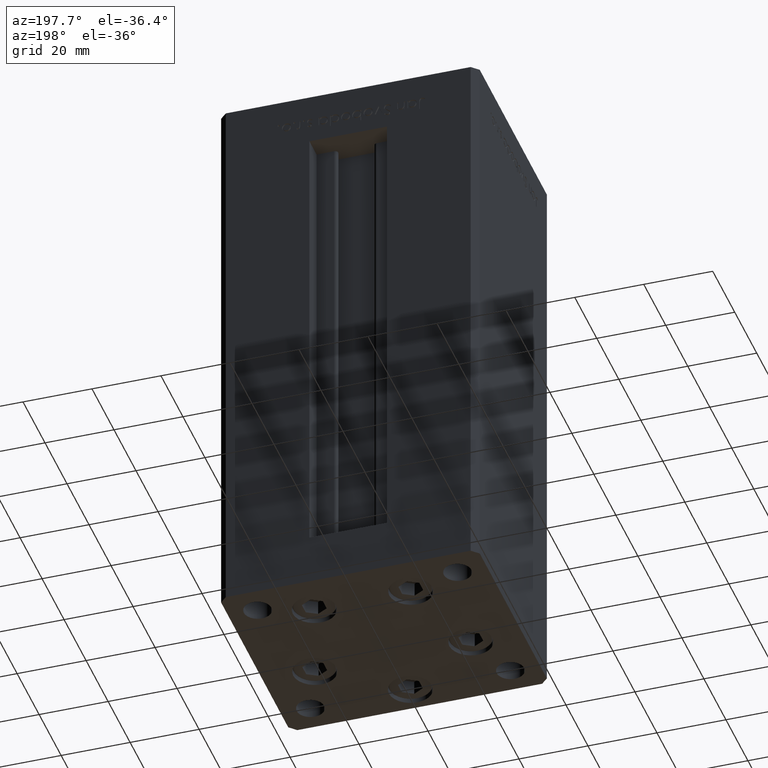
[diagram: clean part render]
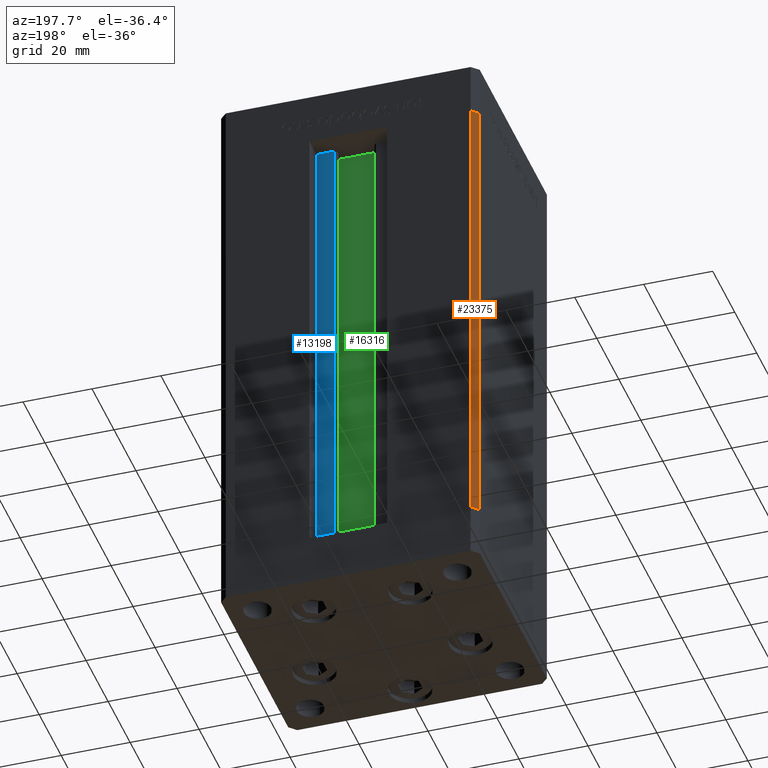
[diagram: same view with three faces highlighted in distinct colors, each labeled with its STEP entity id]
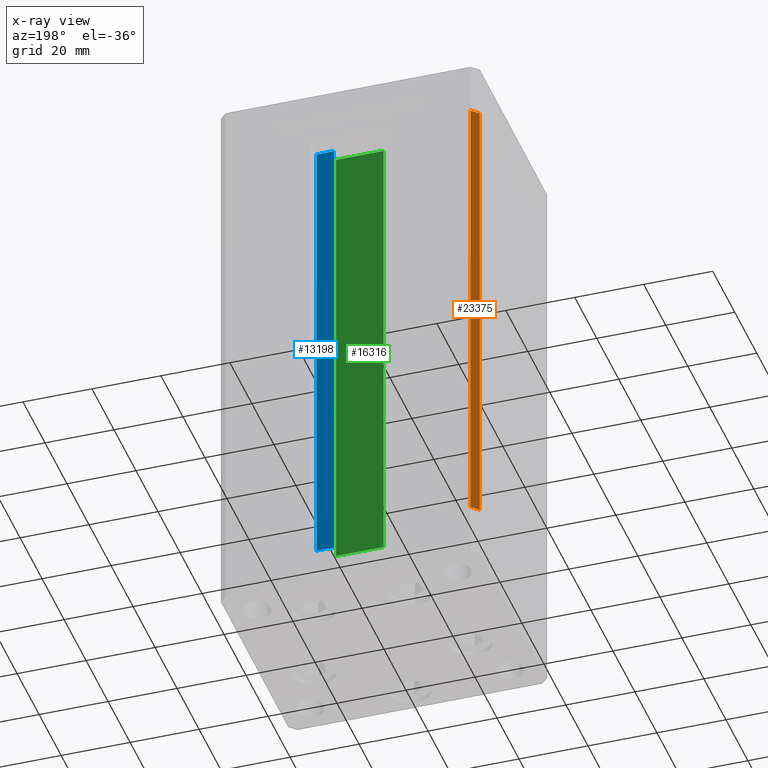
[diagram: x-ray of the same camera — body ghosted, the three highlighted faces saturated]
A machine part, auxiliary view with three faces highlighted in distinct colors.
The next image is the same camera in x-ray (body ghosted, the three faces saturated) — at least one of them is partly hidden behind the body in this view.
Their STEP definitions:

[orange] entity #23375 — the highlighted planar face has unit normal (0.7071, -0.7071, 0).
#1113 = DIRECTION ( 'NONE',  ( -0.000000000000000000, -0.000000000000000000, -1.000000000000000000 ) ) ;
#3358 = ORIENTED_EDGE ( 'NONE', *, *, #16853, .F. ) ;
#5956 = LINE ( 'NONE', #38162, #46233 ) ;
#6739 = VERTEX_POINT ( 'NONE', #15848 ) ;
#7260 = CARTESIAN_POINT ( 'NONE',  ( -35.50000000000000000, 32.49999999999999289, 136.0000000000000000 ) ) ;
#9778 = ORIENTED_EDGE ( 'NONE', *, *, #35055, .T. ) ;
#10961 = DIRECTION ( 'NONE',  ( 0.7071067811865500152, 0.7071067811865451302, 0.000000000000000000 ) ) ;
#11980 = EDGE_CURVE ( 'NONE', #6739, #12388, #45165, .T. ) ;
#12388 = VERTEX_POINT ( 'NONE', #29015 ) ;
#13610 = DIRECTION ( 'NONE',  ( -0.000000000000000000, -0.000000000000000000, -1.000000000000000000 ) ) ;
#14700 = CARTESIAN_POINT ( 'NONE',  ( -35.50000000000000000, 32.49999999999999289, 136.0000000000000000 ) ) ;
#14723 = CARTESIAN_POINT ( 'NONE',  ( -37.50000000000000711, 30.50000000000000000, 136.0000000000000000 ) ) ;
#15848 = CARTESIAN_POINT ( 'NONE',  ( -35.50000000000000000, 32.49999999999999289, 136.0000000000000000 ) ) ;
#16853 = EDGE_CURVE ( 'NONE', #6739, #19090, #34246, .T. ) ;
#19090 = VERTEX_POINT ( 'NONE', #14723 ) ;
#20276 = VERTEX_POINT ( 'NONE', #49979 ) ;
#23352 = PLANE ( 'NONE',  #35989 ) ;
#23375 = ADVANCED_FACE ( 'NONE', ( #29170 ), #23352, .F. ) ;
#27368 = VECTOR ( 'NONE', #50332, 1000.000000000000114 ) ;
#28893 = VECTOR ( 'NONE', #1113, 1000.000000000000000 ) ;
#29015 = CARTESIAN_POINT ( 'NONE',  ( -35.50000000000000000, 32.49999999999999289, 0.000000000000000000 ) ) ;
#29170 = FACE_OUTER_BOUND ( 'NONE', #42325, .T. ) ;
#32311 = EDGE_CURVE ( 'NONE', #19090, #20276, #5956, .T. ) ;
#32792 = CARTESIAN_POINT ( 'NONE',  ( -35.50000000000000000, 32.49999999999999289, 136.0000000000000000 ) ) ;
#32899 = VECTOR ( 'NONE', #35916, 1000.000000000000114 ) ;
#32988 = LINE ( 'NONE', #36178, #32899 ) ;
#34246 = LINE ( 'NONE', #14700, #27368 ) ;
#34992 = DIRECTION ( 'NONE',  ( 0.7071067811865451302, -0.7071067811865500152, 0.000000000000000000 ) ) ;
#35055 = EDGE_CURVE ( 'NONE', #12388, #20276, #32988, .T. ) ;
#35916 = DIRECTION ( 'NONE',  ( -0.7071067811865500152, -0.7071067811865451302, 0.000000000000000000 ) ) ;
#35989 = AXIS2_PLACEMENT_3D ( 'NONE', #7260, #34992, #10961 ) ;
#36178 = CARTESIAN_POINT ( 'NONE',  ( -35.50000000000000000, 32.49999999999999289, 0.000000000000000000 ) ) ;
#37179 = ORIENTED_EDGE ( 'NONE', *, *, #32311, .F. ) ;
#38162 = CARTESIAN_POINT ( 'NONE',  ( -37.50000000000000711, 30.50000000000000000, 136.0000000000000000 ) ) ;
#42000 = ORIENTED_EDGE ( 'NONE', *, *, #11980, .T. ) ;
#42325 = EDGE_LOOP ( 'NONE', ( #9778, #37179, #3358, #42000 ) ) ;
#45165 = LINE ( 'NONE', #32792, #28893 ) ;
#46233 = VECTOR ( 'NONE', #13610, 1000.000000000000000 ) ;
#49979 = CARTESIAN_POINT ( 'NONE',  ( -37.50000000000000711, 30.50000000000000000, 0.000000000000000000 ) ) ;
#50332 = DIRECTION ( 'NONE',  ( -0.7071067811865500152, -0.7071067811865451302, 0.000000000000000000 ) ) ;

[blue] entity #13198 — the highlighted planar face has unit normal (0, -1, 0).
#64 = CARTESIAN_POINT ( 'NONE',  ( 6.183333333334001480, 25.99999999999999289, 0.000000000000000000 ) ) ;
#599 = LINE ( 'NONE', #16688, #14920 ) ;
#3943 = CARTESIAN_POINT ( 'NONE',  ( 11.25000000000000178, 25.99999999999999289, 0.000000000000000000 ) ) ;
#4872 = CARTESIAN_POINT ( 'NONE',  ( 0.000000000000000000, 25.99999999999999289, 136.0000000000000000 ) ) ;
#4913 = VECTOR ( 'NONE', #5041, 1000.000000000000000 ) ;
#5041 = DIRECTION ( 'NONE',  ( 1.000000000000000000, 0.000000000000000000, 0.000000000000000000 ) ) ;
#8708 = AXIS2_PLACEMENT_3D ( 'NONE', #32509, #23812, #24580 ) ;
#8740 = FACE_OUTER_BOUND ( 'NONE', #16702, .T. ) ;
#9233 = VERTEX_POINT ( 'NONE', #16463 ) ;
#10484 = ORIENTED_EDGE ( 'NONE', *, *, #42744, .F. ) ;
#11001 = DIRECTION ( 'NONE',  ( -0.000000000000000000, -0.000000000000000000, 1.000000000000000000 ) ) ;
#12022 = LINE ( 'NONE', #4872, #34131 ) ;
#12198 = CARTESIAN_POINT ( 'NONE',  ( 6.183333333334001480, 25.99999999999999289, 0.000000000000000000 ) ) ;
#13198 = ADVANCED_FACE ( 'NONE', ( #8740 ), #48070, .F. ) ;
#13361 = VECTOR ( 'NONE', #20046, 1000.000000000000000 ) ;
#14920 = VECTOR ( 'NONE', #11001, 1000.000000000000000 ) ;
#16463 = CARTESIAN_POINT ( 'NONE',  ( 11.25000000000000178, 25.99999999999999289, 136.0000000000000000 ) ) ;
#16688 = CARTESIAN_POINT ( 'NONE',  ( 6.183333333334001480, 25.99999999999999289, 0.000000000000000000 ) ) ;
#16702 = EDGE_LOOP ( 'NONE', ( #43496, #10484, #34746, #34164 ) ) ;
#17021 = EDGE_CURVE ( 'NONE', #9233, #45565, #12022, .T. ) ;
#17184 = LINE ( 'NONE', #64, #4913 ) ;
#20046 = DIRECTION ( 'NONE',  ( -0.000000000000000000, -0.000000000000000000, 1.000000000000000000 ) ) ;
#23812 = DIRECTION ( 'NONE',  ( 0.000000000000000000, -1.000000000000000000, 0.000000000000000000 ) ) ;
#24580 = DIRECTION ( 'NONE',  ( 0.000000000000000000, -0.000000000000000000, -1.000000000000000000 ) ) ;
#24891 = CARTESIAN_POINT ( 'NONE',  ( 6.183333333334001480, 25.99999999999999289, 136.0000000000000000 ) ) ;
#27708 = CARTESIAN_POINT ( 'NONE',  ( 11.25000000000000178, 25.99999999999999289, 0.000000000000000000 ) ) ;
#32509 = CARTESIAN_POINT ( 'NONE',  ( 6.183333333334001480, 25.99999999999999289, 0.000000000000000000 ) ) ;
#33728 = VERTEX_POINT ( 'NONE', #27708 ) ;
#34131 = VECTOR ( 'NONE', #48679, 1000.000000000000000 ) ;
#34146 = VERTEX_POINT ( 'NONE', #12198 ) ;
#34164 = ORIENTED_EDGE ( 'NONE', *, *, #17021, .F. ) ;
#34746 = ORIENTED_EDGE ( 'NONE', *, *, #38864, .T. ) ;
#38864 = EDGE_CURVE ( 'NONE', #34146, #45565, #599, .T. ) ;
#42744 = EDGE_CURVE ( 'NONE', #34146, #33728, #17184, .T. ) ;
#43032 = EDGE_CURVE ( 'NONE', #33728, #9233, #48786, .T. ) ;
#43496 = ORIENTED_EDGE ( 'NONE', *, *, #43032, .F. ) ;
#45565 = VERTEX_POINT ( 'NONE', #24891 ) ;
#48070 = PLANE ( 'NONE',  #8708 ) ;
#48679 = DIRECTION ( 'NONE',  ( -1.000000000000000000, 0.000000000000000000, 0.000000000000000000 ) ) ;
#48786 = LINE ( 'NONE', #3943, #13361 ) ;

[green] entity #16316 — the highlighted planar face has unit normal (0, -1, 0).
#844 = DIRECTION ( 'NONE',  ( -1.000000000000000000, 0.000000000000000000, 0.000000000000000000 ) ) ;
#3645 = ORIENTED_EDGE ( 'NONE', *, *, #11969, .F. ) ;
#3771 = EDGE_LOOP ( 'NONE', ( #36573, #32319, #12541, #3645 ) ) ;
#4539 = LINE ( 'NONE', #13239, #9507 ) ;
#5369 = CARTESIAN_POINT ( 'NONE',  ( -6.876153656360466826, 21.99999999999986855, 0.000000000000000000 ) ) ;
#7137 = AXIS2_PLACEMENT_3D ( 'NONE', #40252, #36554, #29138 ) ;
#9507 = VECTOR ( 'NONE', #844, 1000.000000000000000 ) ;
#11969 = EDGE_CURVE ( 'NONE', #12527, #34114, #4539, .T. ) ;
#12527 = VERTEX_POINT ( 'NONE', #41421 ) ;
#12541 = ORIENTED_EDGE ( 'NONE', *, *, #52076, .T. ) ;
#13239 = CARTESIAN_POINT ( 'NONE',  ( 0.000000000000000000, 21.99999999999986855, 136.0000000000000000 ) ) ;
#16316 = ADVANCED_FACE ( 'NONE', ( #40510 ), #28621, .F. ) ;
#19307 = CARTESIAN_POINT ( 'NONE',  ( 6.876153656360466826, 21.99999999999986855, 0.000000000000000000 ) ) ;
#20631 = CARTESIAN_POINT ( 'NONE',  ( -6.876153656360466826, 21.99999999999986855, 136.0000000000000000 ) ) ;
#20778 = VECTOR ( 'NONE', #37875, 1000.000000000000000 ) ;
#22994 = DIRECTION ( 'NONE',  ( -0.000000000000000000, -0.000000000000000000, 1.000000000000000000 ) ) ;
#25354 = EDGE_CURVE ( 'NONE', #41725, #30752, #27474, .T. ) ;
#27178 = EDGE_CURVE ( 'NONE', #30752, #12527, #34711, .T. ) ;
#27474 = LINE ( 'NONE', #19307, #49422 ) ;
#28621 = PLANE ( 'NONE',  #7137 ) ;
#29138 = DIRECTION ( 'NONE',  ( 0.000000000000000000, 0.000000000000000000, -1.000000000000000000 ) ) ;
#29642 = VECTOR ( 'NONE', #22994, 1000.000000000000000 ) ;
#30664 = LINE ( 'NONE', #38577, #29642 ) ;
#30752 = VERTEX_POINT ( 'NONE', #41360 ) ;
#32319 = ORIENTED_EDGE ( 'NONE', *, *, #25354, .F. ) ;
#34114 = VERTEX_POINT ( 'NONE', #20631 ) ;
#34711 = LINE ( 'NONE', #49741, #20778 ) ;
#35411 = DIRECTION ( 'NONE',  ( 1.000000000000000000, -0.000000000000000000, -0.000000000000000000 ) ) ;
#36554 = DIRECTION ( 'NONE',  ( 0.000000000000000000, -1.000000000000000000, -0.000000000000000000 ) ) ;
#36573 = ORIENTED_EDGE ( 'NONE', *, *, #27178, .F. ) ;
#37875 = DIRECTION ( 'NONE',  ( -0.000000000000000000, -0.000000000000000000, 1.000000000000000000 ) ) ;
#38577 = CARTESIAN_POINT ( 'NONE',  ( -6.876153656360466826, 21.99999999999986855, 0.000000000000000000 ) ) ;
#40252 = CARTESIAN_POINT ( 'NONE',  ( 6.876153656360466826, 21.99999999999986855, 0.000000000000000000 ) ) ;
#40510 = FACE_OUTER_BOUND ( 'NONE', #3771, .T. ) ;
#41360 = CARTESIAN_POINT ( 'NONE',  ( 6.876153656360466826, 21.99999999999986855, 0.000000000000000000 ) ) ;
#41421 = CARTESIAN_POINT ( 'NONE',  ( 6.876153656360466826, 21.99999999999986855, 136.0000000000000000 ) ) ;
#41725 = VERTEX_POINT ( 'NONE', #5369 ) ;
#49422 = VECTOR ( 'NONE', #35411, 1000.000000000000000 ) ;
#49741 = CARTESIAN_POINT ( 'NONE',  ( 6.876153656360466826, 21.99999999999986855, 0.000000000000000000 ) ) ;
#52076 = EDGE_CURVE ( 'NONE', #41725, #34114, #30664, .T. ) ;